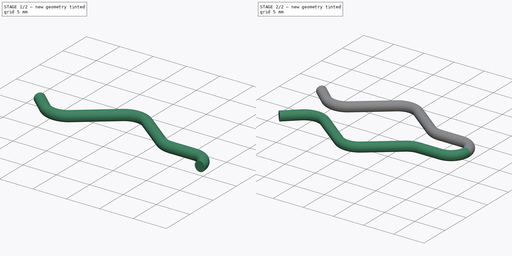
[diagram: build sequence overview — one tinted view per stage of 2, left to right]
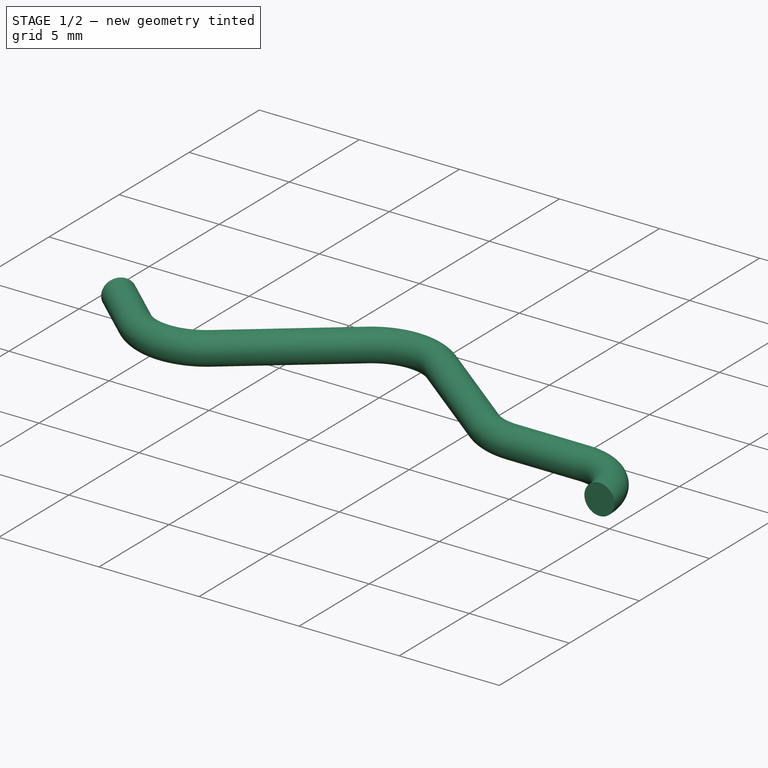
[diagram: stage 1 of 2 — iso view after this stage's code; geometry added in this stage tinted green]
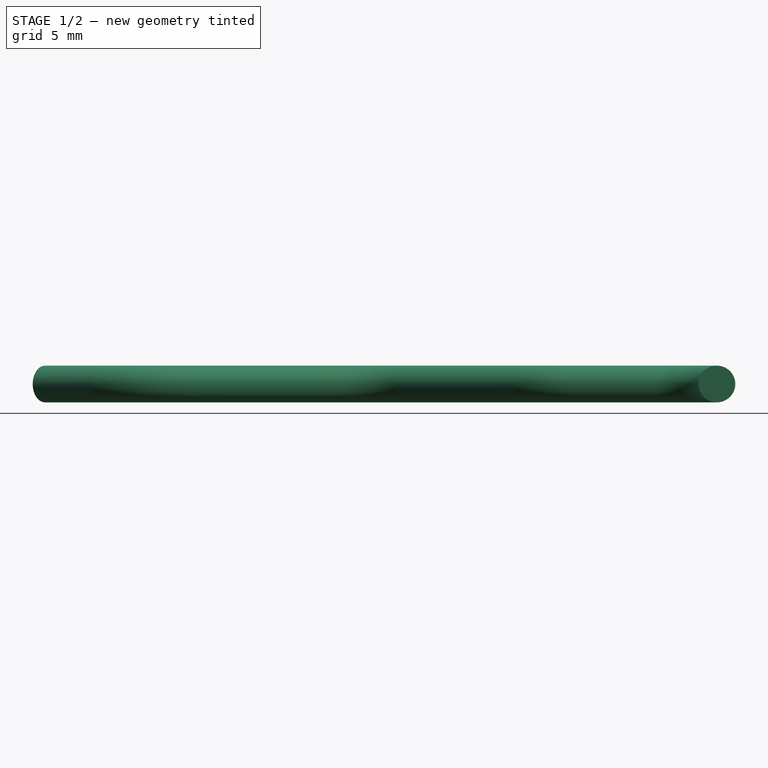
[diagram: stage 1 of 2 — front view after this stage's code; geometry added in this stage tinted green]
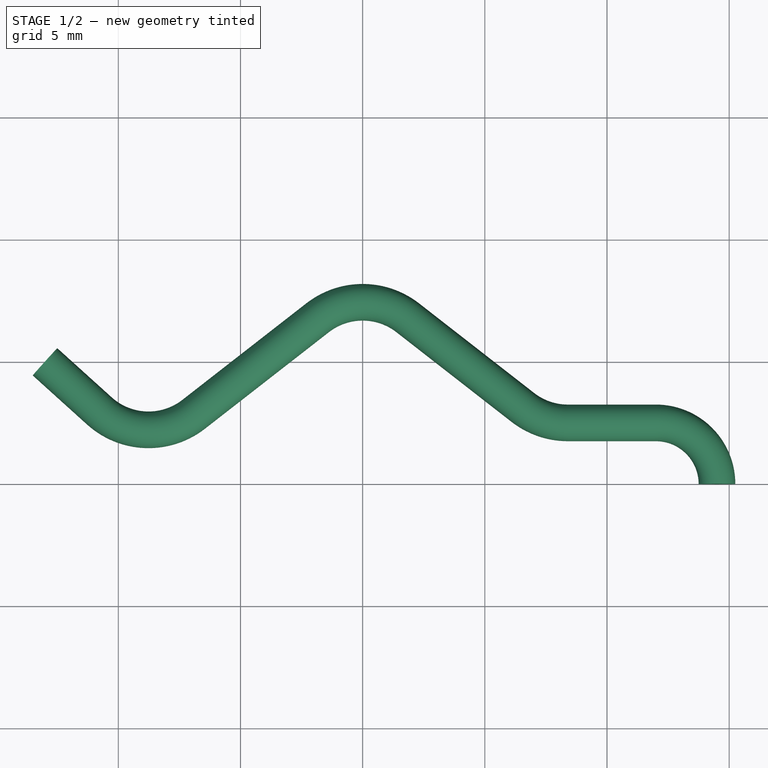
[diagram: stage 1 of 2 — top view after this stage's code; geometry added in this stage tinted green]
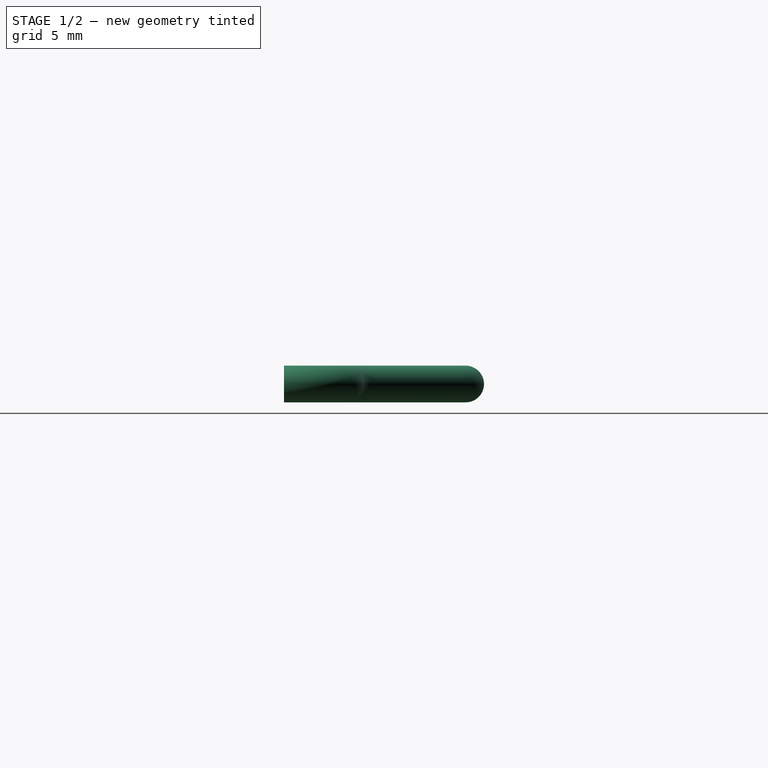
[diagram: stage 1 of 2 — right view after this stage's code; geometry added in this stage tinted green]
FCSTD DOCUMENT  (FreeCAD 0.19R22846 (Git))
Label: uebung1
License: All rights reserved
LicenseURL: http://en.wikipedia.org/wiki/All_rights_reserved
objects: Sketcher::SketchObject×2, PartDesign::Plane×1, PartDesign::AdditivePipe×1, PartDesign::Mirrored×1, PartDesign::Body×1
note: 7 computed .brp shape members not serialized (recipe doc carries the construction recipe); baked Part::Feature solids carry a one-line shape summary decoded from their .brp

FEATURE [Sketcher::SketchObject] Sketch  label="sk_pfad"
  MapMode = 5
  Support = -> [XY_Plane]
  sketch-geometry (9):
    g0: Circle [constr] CenterX=0 CenterY=0 CenterZ=0 NormalX=0 NormalY=0 NormalZ=1 AngleXU=0 Radius=6.5
    g1: LineSegment StartX=-13 StartY=5 StartZ=0 EndX=-10.7734 EndY=2.98945 EndZ=0
    g2: LineSegment StartX=-6.91923 StartY=2.84938 StartZ=0 EndX=-1.84363 EndY=6.8033 EndZ=0
    g3: ArcOfCircle CenterX=0 CenterY=4.43665 CenterZ=0 NormalX=0 NormalY=0 NormalZ=1 AngleXU=0 Radius=3 StartAngle=0.908989 EndAngle=2.2326
    g4: LineSegment StartX=1.84363 StartY=6.8033 StartZ=0 EndX=6.55471 EndY=3.13335 EndZ=0
    g5: LineSegment StartX=8.39834 StartY=2.5 StartZ=0 EndX=12 EndY=2.5 EndZ=0
    g6: ArcOfCircle CenterX=8.39834 CenterY=5.5 CenterZ=0 NormalX=0 NormalY=0 NormalZ=1 AngleXU=0 Radius=3 StartAngle=4.05058 EndAngle=4.71239
    g7: ArcOfCircle CenterX=12 CenterY=0 CenterZ=0 NormalX=0 NormalY=0 NormalZ=1 AngleXU=0 Radius=2.5 StartAngle=0 EndAngle=1.5708
    g8: ArcOfCircle CenterX=-8.76286 CenterY=5.21603 CenterZ=0 NormalX=0 NormalY=0 NormalZ=1 AngleXU=0 Radius=3 StartAngle=3.97793 EndAngle=5.3742
  constraints (31):
    c: Coincident(g0,g-1)
    c: Diameter(g0) = 13
    c: Coincident(g3,g4)
    c: DistanceY(g1) = 5
    c: DistanceX(g1,g-1) = 13
    c: Angle(g2,g1) = 1.74533
    c: Tangent(g2,g0)
    c: Radius(g3) = 3
    c: Coincident(g2,g3)
    c: Tangent(g0,g4)
    c: DistanceX(g-1,g5) = 12
    c: PointOnObject(g3,g-2)
    c: Distance(g1) = 3
    c: Horizontal(g5)
    c: Coincident(g6,g4)
    c: Coincident(g6,g5)
    c: Tangent(g4,g6) = -1.5708
    c: Tangent(g5,g6) = -1.5708
    c: Tangent(g2,g3) = 1.5708
    c: PointOnObject(g7,g-1)
    c: Coincident(g7,g5)
    c: PointOnObject(g7,g-1)
    c: Tangent(g5,g7) = 1.5708
    c: Radius(g6) = 3
    c: Radius(g7) = 2.5
    c: Coincident(g8,g1)
    c: Coincident(g8,g2)
    c: Tangent(g1,g8) = -1.5708
    c: Tangent(g2,g8) = -1.5708
    c: Equal(g8,g3)
    c: Tangent(g3,g4) = 1.5708
FEATURE [PartDesign::Plane] DatumPlane  label="dp_durchmesser"
  Length = 82.5033
  MapMode = 7
  Placement = pos=(-13,5,0) rot=(-0.299773,0.674587,0.674587;3.72409rad)
  ResizeMode = 0
  Support = -> [Sketch]
  Width = 61.8844
FEATURE [Sketcher::SketchObject] Sketch001  label="sk_durchmesser"
  MapMode = 5
  Placement = pos=(-13,5,0) rot=(-0.299773,0.674587,0.674587;3.72409rad)
  Support = -> [DatumPlane]
  sketch-geometry (1):
    g0: Circle CenterX=0 CenterY=0 CenterZ=0 NormalX=0 NormalY=0 NormalZ=1 AngleXU=0 Radius=0.75
  constraints (2):
    c: Coincident(g0,g-1)
    c: Diameter(g0) = 1.5
FEATURE [PartDesign::AdditivePipe] AdditivePipe  label="p_halbe_klammer"
  AuxilleryCurvelinear = true
  AuxillerySpineTangent = false
  Binormal = (0,0,0)
  Mode = 0
  Placement = pos=(-13,5,0) rot=(-0.299773,0.674587,0.674587;3.72409rad)
  Profile = -> Sketch001
  Refine = true
  Spine = -> Sketch
  SpineTangent = false
  Transformation = 0
  Transition = 1
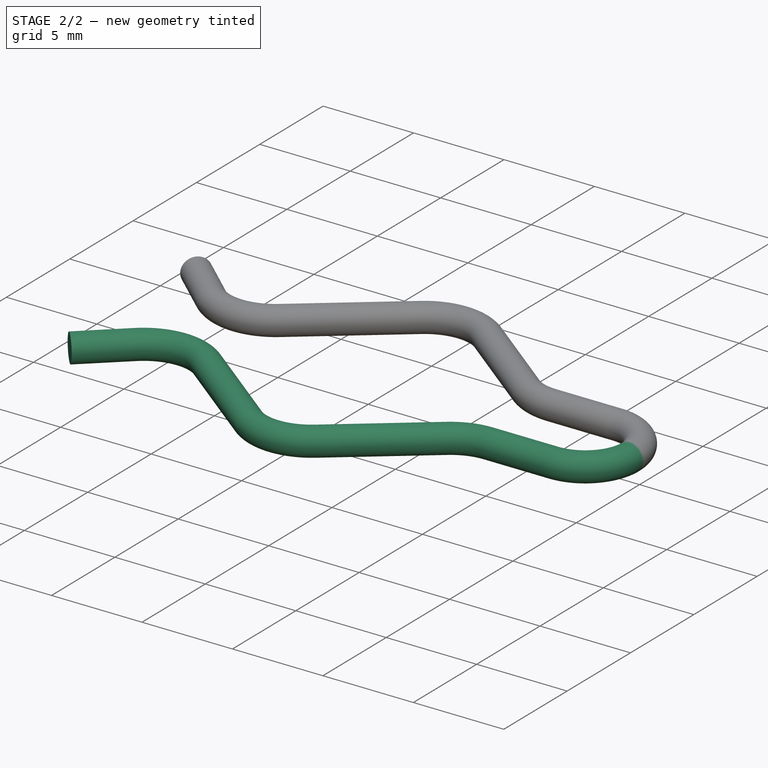
[diagram: stage 2 of 2 — iso view after this stage's code; geometry added in this stage tinted green]
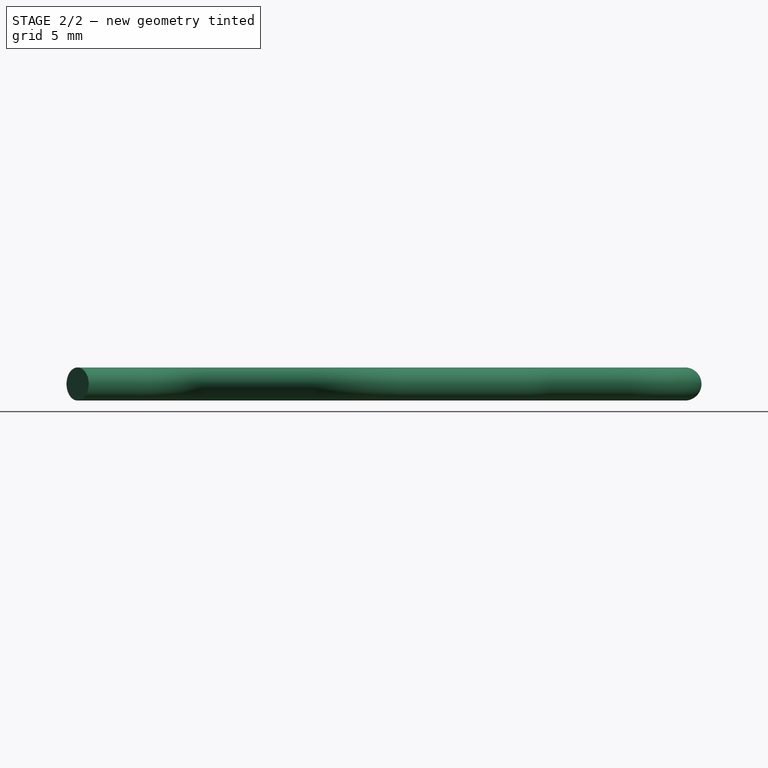
[diagram: stage 2 of 2 — front view after this stage's code; geometry added in this stage tinted green]
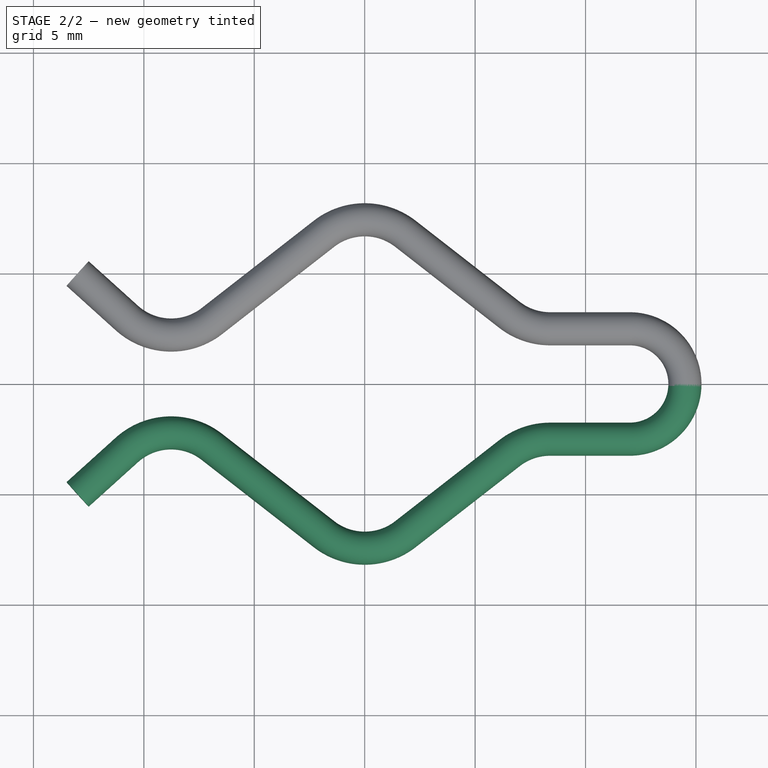
[diagram: stage 2 of 2 — top view after this stage's code; geometry added in this stage tinted green]
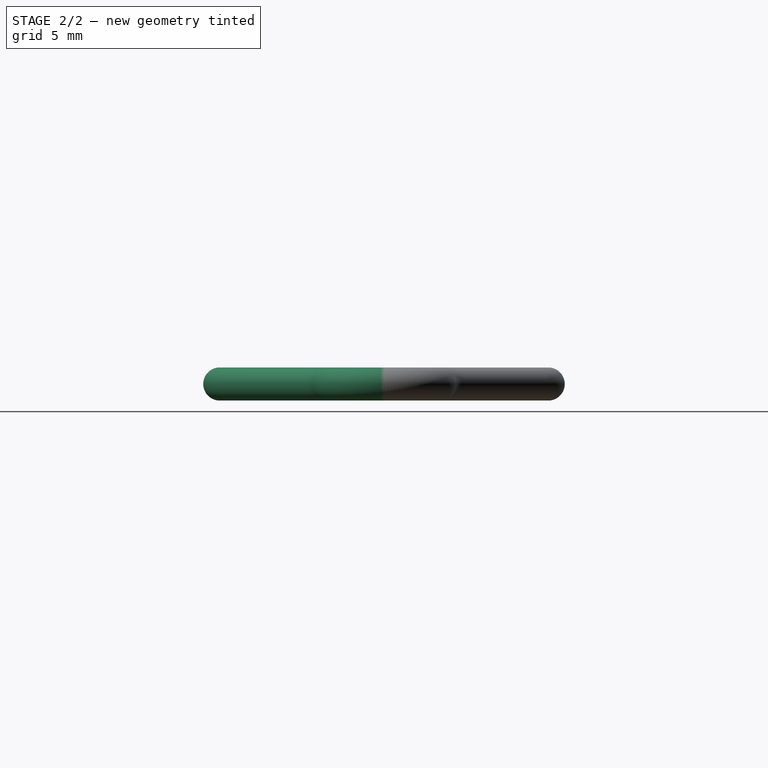
[diagram: stage 2 of 2 — right view after this stage's code; geometry added in this stage tinted green]
FEATURE [PartDesign::Mirrored] Mirrored  label="m_ganze_klammer"
  BaseFeature = -> AdditivePipe
  MirrorPlane = -> XZ_Plane
  Originals = -> [AdditivePipe]
  Placement = pos=(-13,5,0) rot=(-0.299773,0.674587,0.674587;3.72409rad)
  Refine = true
FEATURE [PartDesign::Body] Body
  Group = -> [Sketch,DatumPlane,Sketch001,AdditivePipe,Mirrored]
  Origin = -> Origin
  Tip = -> Mirrored
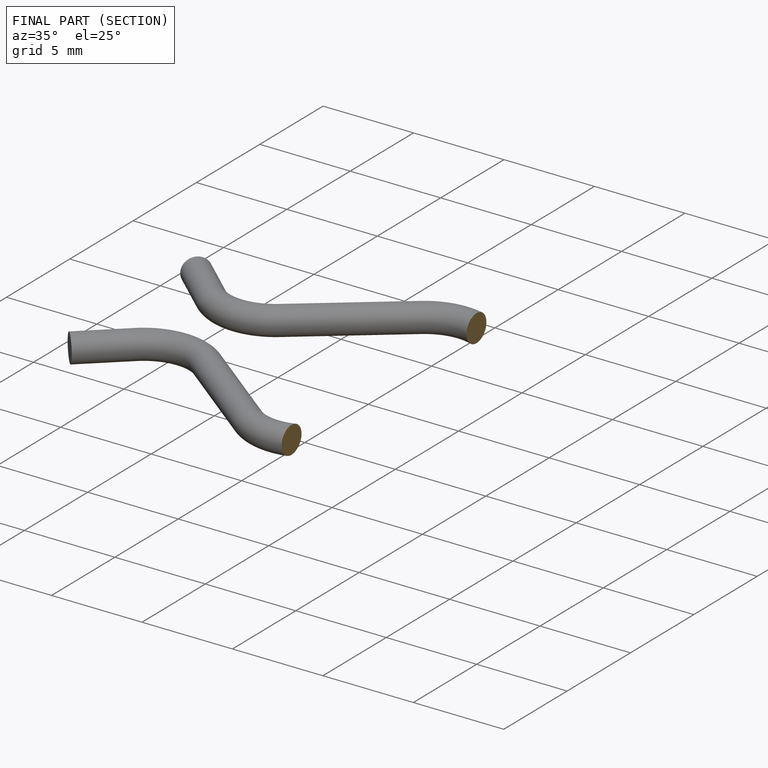
[diagram: finished part — half-section view (interior)]
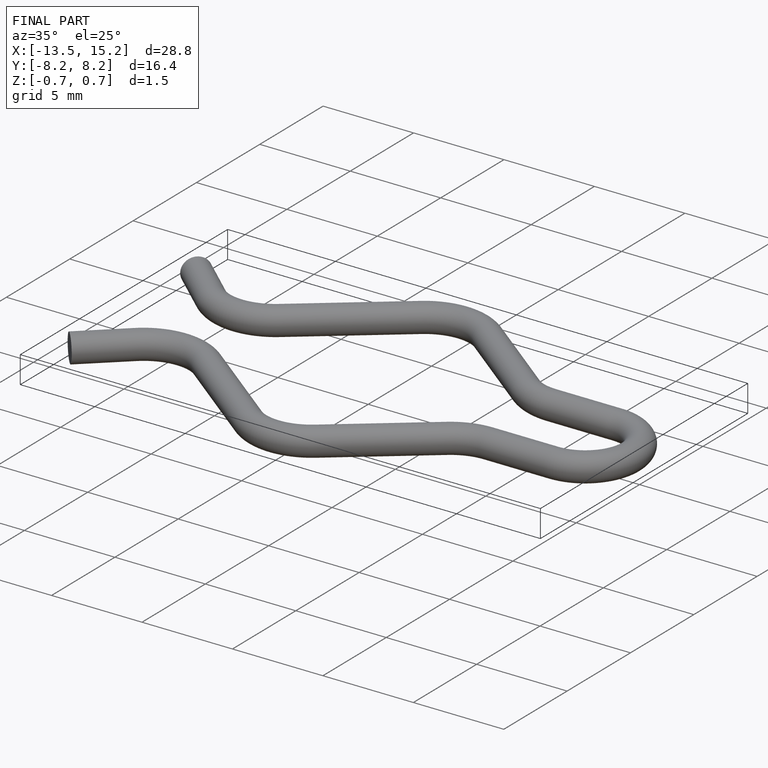
[diagram: finished part — iso view with bounding-box wireframe]
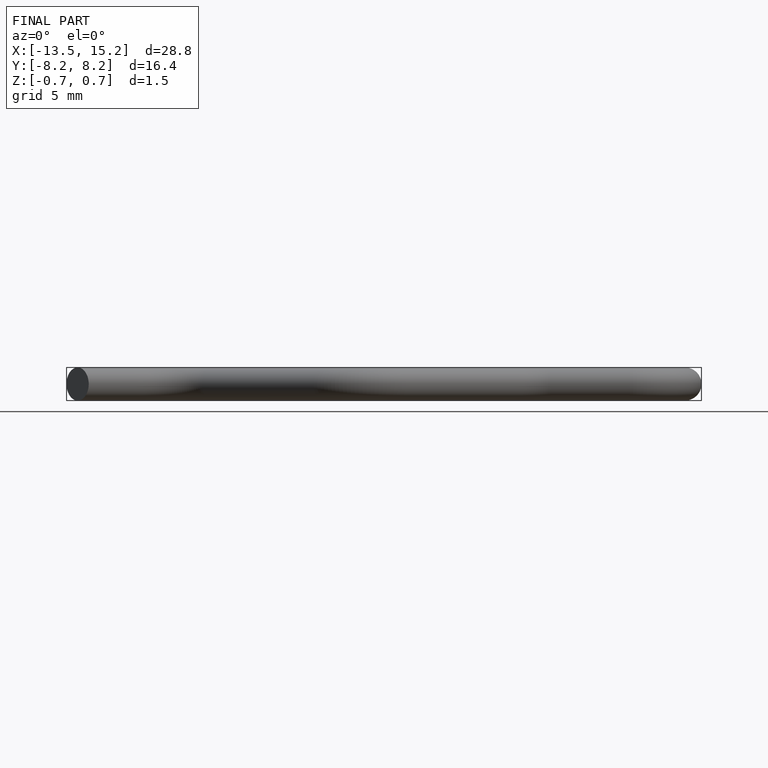
[diagram: finished part — front view with bounding-box wireframe]
